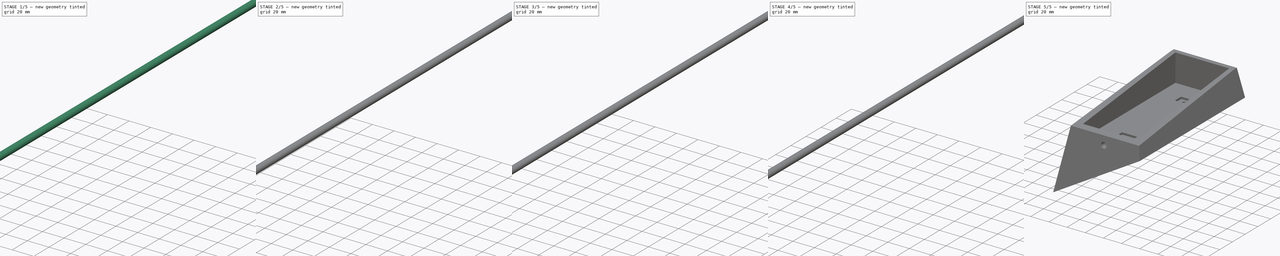
[diagram: build sequence overview — one tinted view per stage of 5, left to right]
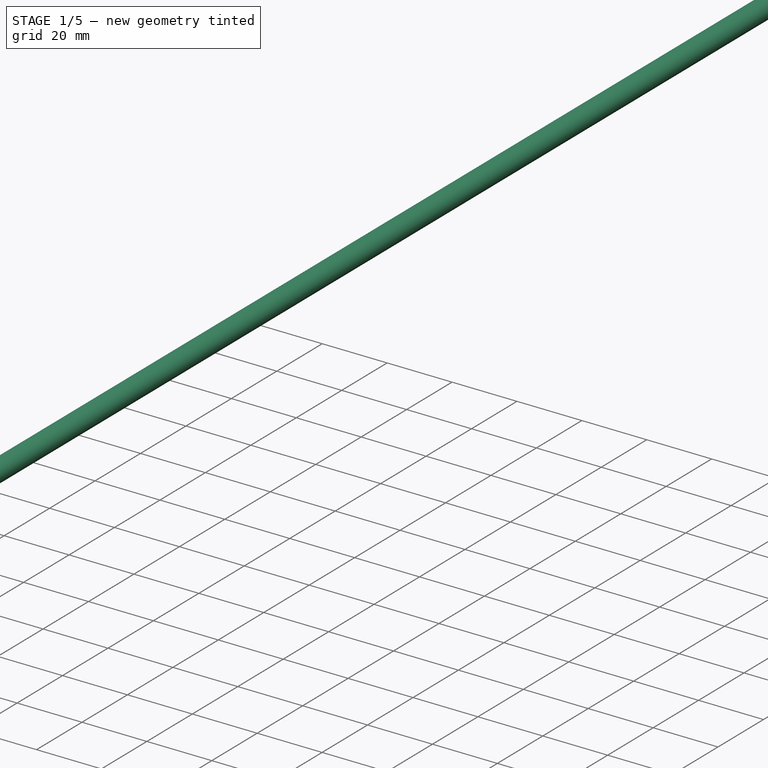
[diagram: stage 1 of 5 — iso view after this stage's code; geometry added in this stage tinted green]
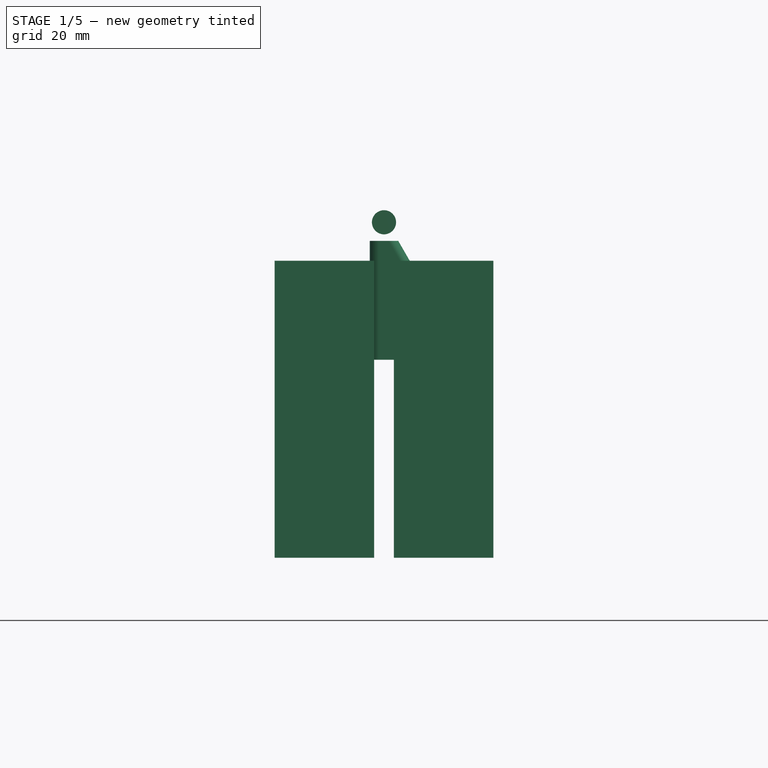
[diagram: stage 1 of 5 — front view after this stage's code; geometry added in this stage tinted green]
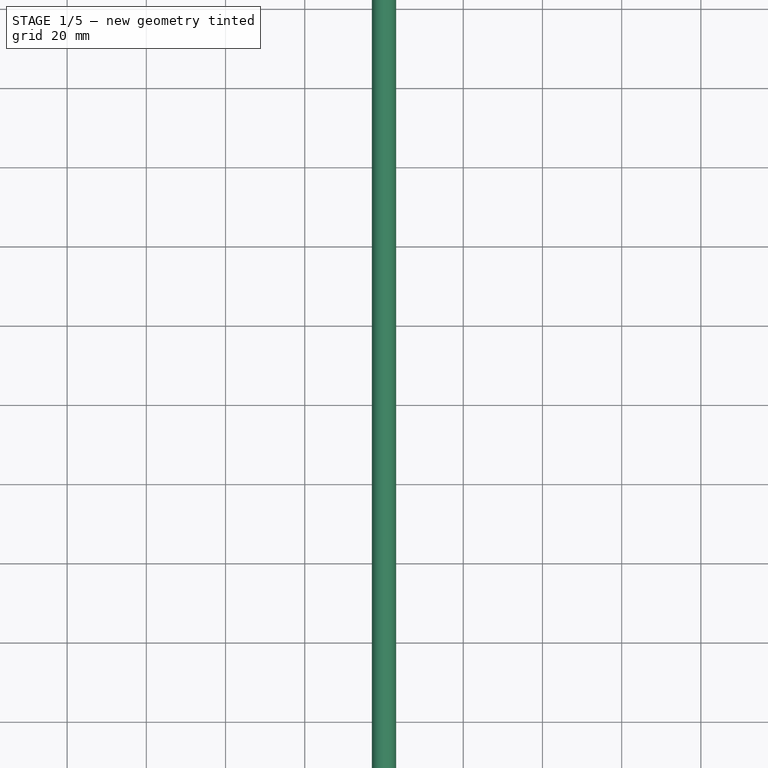
[diagram: stage 1 of 5 — top view after this stage's code; geometry added in this stage tinted green]
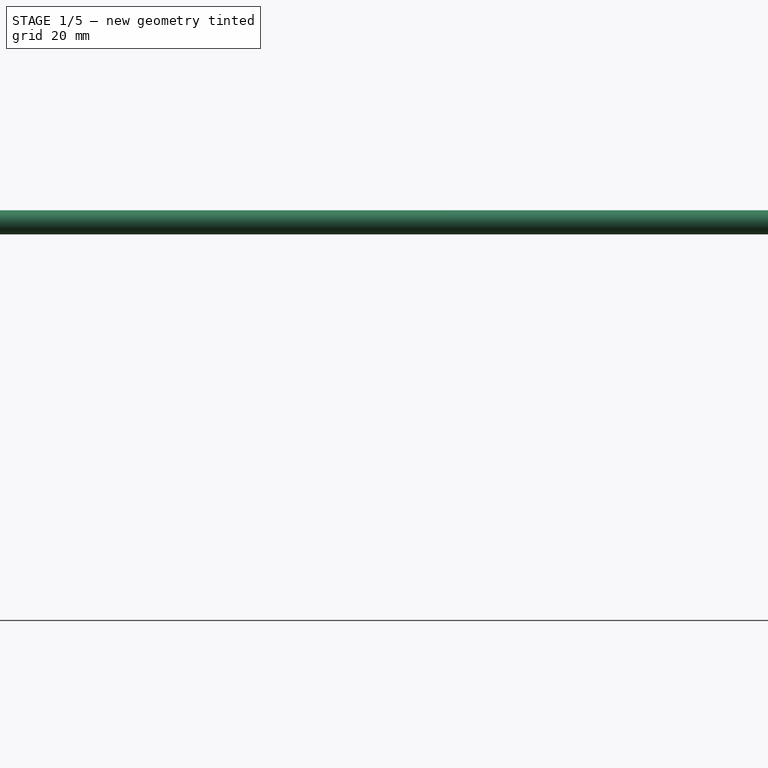
[diagram: stage 1 of 5 — right view after this stage's code; geometry added in this stage tinted green]
FCSTD DOCUMENT  (FreeCAD 0.20R29410 (Git))
Label: eufy_doorbell_cover
License: All rights reserved
LicenseURL: http://en.wikipedia.org/wiki/All_rights_reserved
objects: Sketcher::SketchObject×10, Part::Cut×9, Part::Extrusion×8, Part::Mirroring×3, Spreadsheet::Sheet×1, Part::Fuse×1, Part::Loft×1
note: 32 computed .brp shape members not serialized (recipe doc carries the construction recipe); baked Part::Feature solids carry a one-line shape summary decoded from their .brp

FEATURE [Sketcher::SketchObject] Sketch006  label="ScrewSlotEntry"
  FullyConstrained = true
  expr: Constraints[11] = <<Variables>>.OriginalScrewHoleDiameter
  expr: Constraints[12] = <<Variables>>.OriginalScrewHoleWidth - <<Variables>>.OriginalScrewHoleDiameter
  expr: Constraints[16] = <<Variables>>.MountHoleSeparation
  sketch-geometry (8):
    g0: ArcOfCircle CenterX=-1.2 CenterY=46.35 CenterZ=0 NormalX=0 NormalY=0 NormalZ=1 AngleXU=0 Radius=2.4 StartAngle=1.5708 EndAngle=4.71239
    g1: ArcOfCircle CenterX=1.2 CenterY=46.35 CenterZ=0 NormalX=0 NormalY=0 NormalZ=1 AngleXU=0 Radius=2.4 StartAngle=4.71239 EndAngle=7.85398
    g2: LineSegment StartX=-1.2 StartY=43.95 StartZ=0 EndX=1.2 EndY=43.95 EndZ=0
    g3: LineSegment StartX=1.2 StartY=48.75 StartZ=0 EndX=-1.2 EndY=48.75 EndZ=0
    g4: ArcOfCircle CenterX=-1.2 CenterY=-46.35 CenterZ=0 NormalX=0 NormalY=0 NormalZ=1 AngleXU=0 Radius=2.4 StartAngle=1.5708 EndAngle=4.71239
    g5: ArcOfCircle CenterX=1.2 CenterY=-46.35 CenterZ=0 NormalX=0 NormalY=0 NormalZ=1 AngleXU=0 Radius=2.4 StartAngle=4.71239 EndAngle=7.85398
    g6: LineSegment StartX=-1.2 StartY=-48.75 StartZ=0 EndX=1.2 EndY=-48.75 EndZ=0
    g7: LineSegment StartX=1.2 StartY=-43.95 StartZ=0 EndX=-1.2 EndY=-43.95 EndZ=0
  constraints (17):
    c: Tangent(g0,g2) = -1.5708
    c: Tangent(g2,g1) = -1.5708
    c: Tangent(g1,g3) = -1.5708
    c: Tangent(g3,g0) = -1.5708
    c: Equal(g0,g1)
    c: Tangent(g4,g6) = -1.5708
    c: Tangent(g6,g5) = -1.5708
    c: Tangent(g5,g7) = -1.5708
    c: Tangent(g7,g4) = -1.5708
    c: Equal(g4,g5)
    c: Equal(g4,g0)
    c: DistanceY(g4,g4) = 4.8
    c: DistanceX(g3,g3) = 2.4
    c: Symmetric(g0,g1,g-2)
    c: Symmetric(g4,g5,g-2)
    c: Symmetric(g5,g1,g-1)
    c: DistanceY(g5,g1) = 92.7
FEATURE [Sketcher::SketchObject] Sketch007  label="ScrewSlotBase"
  FullyConstrained = true
  Placement = pos=(0,0,-30) rot=(0,0,1;0rad)
  expr: Constraints[5] = <<Variables>>.ScrewHoleWidthAt30 - <<Variables>>.OriginalScrewHoleDiameter
  expr: Constraints[6] = <<Variables>>.MountHoleSeparation / 2
  expr: Constraints[7] = (<<Variables>>.OriginalScrewHoleWidth - <<Variables>>.OriginalScrewHoleDiameter) / 2
  expr: Constraints[8] = <<Variables>>.OriginalScrewHoleDiameter
  sketch-geometry (4):
    g0: ArcOfCircle CenterX=-1.2 CenterY=46.35 CenterZ=0 NormalX=0 NormalY=0 NormalZ=1 AngleXU=0 Radius=2.4 StartAngle=1.5708 EndAngle=4.71239
    g1: ArcOfCircle CenterX=18.5205 CenterY=46.35 CenterZ=0 NormalX=0 NormalY=0 NormalZ=1 AngleXU=0 Radius=2.4 StartAngle=4.71239 EndAngle=7.85398
    g2: LineSegment StartX=-1.2 StartY=43.95 StartZ=0 EndX=18.5205 EndY=43.95 EndZ=0
    g3: LineSegment StartX=18.5205 StartY=48.75 StartZ=0 EndX=-1.2 EndY=48.75 EndZ=0
  constraints (10):
    c: Tangent(g0,g2) = -1.5708
    c: Tangent(g2,g1) = -1.5708
    c: Tangent(g1,g3) = -1.5708
    c: Tangent(g3,g0) = -1.5708
    c: Equal(g0,g1)
    c: DistanceX(g3,g3) = 19.7205
    c: DistanceY(g-1,g0) = 46.35
    c: DistanceX(g0,g-1) = 1.2
    c: DistanceY(g1,g1) = 4.8
    c: Horizontal(g3)
FEATURE [Part::Loft] Loft  label="ScrewSlotUpper"
  Closed = false
  MaxDegree = 5
  Ruled = false
  Sections = -> [Sketch006,Sketch007]
  Solid = true
FEATURE [Sketcher::SketchObject] Sketch008
  FullyConstrained = true
  expr: Constraints[100] = <<Variables>>.MountHoleSeparation / 2
  expr: Constraints[101] = <<Variables>>.StrengthCutoutThickness
  expr: Constraints[102] = <<Variables>>.StrengthCutoutThickness
  expr: Constraints[103] = <<Variables>>.StrengthCutoutGap
  expr: Constraints[73] = <<Variables>>.EufyWidth + <<Variables>>.FaceGap * 2
  expr: Constraints[74] = <<Variables>>.EufyHeight / 2 + <<Variables>>.FaceGap
  expr: Constraints[85] = <<Variables>>.StrengthCutoutGap
  expr: Constraints[86] = <<Variables>>.StrengthCutoutGap
  expr: Constraints[95] = <<Variables>>.MountHoleHeight
  expr: Constraints[96] = <<Variables>>.MountHoleWidth
  sketch-geometry (37):
    g0: LineSegment StartX=-27.6 StartY=70.5 StartZ=0 EndX=-2.5 EndY=70.5 EndZ=0
    g1: LineSegment StartX=-2.5 StartY=70.5 StartZ=0 EndX=-2.5 EndY=54.5 EndZ=0
    g2: LineSegment StartX=-2.5 StartY=54.5 StartZ=0 EndX=-27.6 EndY=54.5 EndZ=0
    g3: LineSegment StartX=-27.6 StartY=54.5 StartZ=0 EndX=-27.6 EndY=70.5 EndZ=0
    g4: LineSegment StartX=2.5 StartY=70.5 StartZ=0 EndX=27.6 EndY=70.5 EndZ=0
    g5: LineSegment StartX=27.6 StartY=70.5 StartZ=0 EndX=27.6 EndY=54.5 EndZ=0
    g6: LineSegment StartX=27.6 StartY=54.5 StartZ=0 EndX=2.5 EndY=54.5 EndZ=0
    g7: LineSegment StartX=2.5 StartY=54.5 StartZ=0 EndX=2.5 EndY=70.5 EndZ=0
    g8: LineSegment StartX=-27.6 StartY=39.5 StartZ=0 EndX=-2.5 EndY=39.5 EndZ=0
    g9: LineSegment StartX=-2.5 StartY=39.5 StartZ=0 EndX=-2.5 EndY=23.5 EndZ=0
    g10: LineSegment StartX=-2.5 StartY=23.5 StartZ=0 EndX=-27.6 EndY=23.5 EndZ=0
    g11: LineSegment StartX=-27.6 StartY=23.5 StartZ=0 EndX=-27.6 EndY=39.5 EndZ=0
    g12: LineSegment StartX=2.5 StartY=39.5 StartZ=0 EndX=27.6 EndY=39.5 EndZ=0
    g13: LineSegment StartX=27.6 StartY=39.5 StartZ=0 EndX=27.6 EndY=23.5 EndZ=0
    g14: LineSegment StartX=27.6 StartY=23.5 StartZ=0 EndX=2.5 EndY=23.5 EndZ=0
    g15: LineSegment StartX=2.5 StartY=23.5 StartZ=0 EndX=2.5 EndY=39.5 EndZ=0
    g16: LineSegment StartX=2.5 StartY=18.5 StartZ=0 EndX=27.6 EndY=18.5 EndZ=0
    g17: LineSegment StartX=27.6 StartY=18.5 StartZ=0 EndX=27.6 EndY=2.5 EndZ=0
    g18: LineSegment StartX=27.6 StartY=2.5 StartZ=0 EndX=2.5 EndY=2.5 EndZ=0
    g19: LineSegment StartX=2.5 StartY=2.5 StartZ=0 EndX=2.5 EndY=18.5 EndZ=0
    g20: LineSegment StartX=-27.6 StartY=18.5 StartZ=0 EndX=-2.5 EndY=18.5 EndZ=0
    g21: LineSegment StartX=-2.5 StartY=18.5 StartZ=0 EndX=-2.5 EndY=2.5 EndZ=0
    g22: LineSegment StartX=-2.5 StartY=2.5 StartZ=0 EndX=-27.6 EndY=2.5 EndZ=0
    g23: LineSegment StartX=-27.6 StartY=2.5 StartZ=0 EndX=-27.6 EndY=18.5 EndZ=0
    g24: LineSegment StartX=-2.5 StartY=54.5 StartZ=0 EndX=-2.5 EndY=39.5 EndZ=0
    g25: LineSegment StartX=-29.6 StartY=0 StartZ=0 EndX=29.6 EndY=0 EndZ=0
    g26: LineSegment StartX=29.6 StartY=0 StartZ=0 EndX=29.6 EndY=72.5 EndZ=0
    g27: LineSegment StartX=29.6 StartY=72.5 StartZ=0 EndX=-29.6 EndY=72.5 EndZ=0
    g28: LineSegment StartX=-29.6 StartY=72.5 StartZ=0 EndX=-29.6 EndY=0 EndZ=0
    g29: LineSegment StartX=-2.5 StartY=23.5 StartZ=0 EndX=-2.5 EndY=21 EndZ=0
    g30: LineSegment StartX=-2.5 StartY=21 StartZ=0 EndX=-2.5 EndY=18.5 EndZ=0
    g31: LineSegment StartX=-2.5 StartY=2.5 StartZ=0 EndX=-2.5 EndY=0 EndZ=0
    g32: LineSegment StartX=-8.3 StartY=51.2 StartZ=0 EndX=8.3 EndY=51.2 EndZ=0
    g33: LineSegment StartX=8.3 StartY=51.2 StartZ=0 EndX=8.3 EndY=41.5 EndZ=0
    g34: LineSegment StartX=8.3 StartY=41.5 StartZ=0 EndX=-8.3 EndY=41.5 EndZ=0
    g35: LineSegment StartX=-8.3 StartY=41.5 StartZ=0 EndX=-8.3 EndY=51.2 EndZ=0
    g36: LineSegment StartX=-8.3 StartY=46.35 StartZ=0 EndX=8.3 EndY=46.35 EndZ=0
  constraints (104):
    c: Coincident(g0,g1)
    c: Coincident(g1,g2)
    c: Coincident(g2,g3)
    c: Coincident(g3,g0)
    c: Horizontal(g0)
    c: Horizontal(g2)
    c: Vertical(g1)
    c: Vertical(g3)
    c: Coincident(g4,g5)
    c: Coincident(g5,g6)
    c: Coincident(g6,g7)
    c: Coincident(g7,g4)
    c: Horizontal(g4)
    c: Horizontal(g6)
    c: Vertical(g5)
    c: Vertical(g7)
    c: Coincident(g8,g9)
    c: Coincident(g9,g10)
    c: Coincident(g10,g11)
    c: Coincident(g11,g8)
    c: Horizontal(g8)
    c: Horizontal(g10)
    c: Vertical(g9)
    c: Vertical(g11)
    c: Coincident(g12,g13)
    c: Coincident(g13,g14)
    c: Coincident(g14,g15)
    c: Coincident(g15,g12)
    c: Horizontal(g12)
    c: Horizontal(g14)
    c: Vertical(g13)
    c: Vertical(g15)
    c: Coincident(g16,g17)
    c: Coincident(g17,g18)
    c: Coincident(g18,g19)
    c: Coincident(g19,g16)
    c: Horizontal(g16)
    c: Horizontal(g18)
    c: Vertical(g17)
    c: Vertical(g19)
    c: Coincident(g20,g21)
    c: Coincident(g21,g22)
    c: Coincident(g22,g23)
    c: Coincident(g23,g20)
    c: Horizontal(g20)
    c: Horizontal(g22)
    c: Vertical(g21)
    c: Vertical(g23)
    c: Coincident(g24,g1)
    c: Coincident(g24,g8)
    c: Vertical(g24)
    c: Equal(g0,g4)
    c: Equal(g4,g12)
    c: Equal(g12,g8)
    c: Equal(g8,g20)
    c: Equal(g20,g16)
    c: Equal(g21,g9)
    c: Equal(g9,g1)
    c: Equal(g7,g15)
    c: Equal(g15,g19)
    c: Equal(g19,g21)
    c: Symmetric(g8,g12,g-2)
    c: Symmetric(g0,g4,g-2)
    c: Symmetric(g20,g16,g-2)
    c: Coincident(g25,g26)
    c: Coincident(g26,g27)
    c: Coincident(g27,g28)
    c: Coincident(g28,g25)
    c: Horizontal(g25)
    c: Vertical(g26)
    c: Vertical(g28)
    c: PointOnObject(g25,g-1)
    c: Symmetric(g27,g26,g-2)
    c: DistanceX(g27,g27) = 59.2
    c: DistanceY(g26,g26) = 72.5
    c: Coincident(g29,g9)
    c: Coincident(g30,g29)
    c: Coincident(g30,g20)
    c: Vertical(g30)
    c: Vertical(g29)
    c: Coincident(g31,g21)
    c: PointOnObject(g31,g25)
    c: Vertical(g31)
    c: Equal(g31,g30)
    c: Equal(g30,g29)
    c: DistanceY(g0,g27) = 2
    c: DistanceX(g25,g8) = 2
    c: Coincident(g32,g33)
    c: Coincident(g33,g34)
    c: Coincident(g34,g35)
    c: Coincident(g35,g32)
    c: Horizontal(g34)
    c: Vertical(g33)
    c: Vertical(g35)
    c: Symmetric(g32,g32,g-2)
    c: DistanceY(g33,g33) = 9.7
    c: DistanceX(g34,g34) = 16.6
    c: PointOnObject(g36,g35)
    c: PointOnObject(g36,g33)
    c: Symmetric(g34,g32,g36)
    c: DistanceY(g-1,g36) = 46.35
    c: DistanceY(g20,g10) = 5
    c: DistanceX(g9,g14) = 5
    c: DistanceY(g8,g34) = 2
FEATURE [Part::Extrusion] Extrude007
  Base = -> Sketch008
  Dir = (0,0,1)
  DirMode = 2
  FaceMakerClass = Part::FaceMakerBullseye
  LengthFwd = -5
  LengthRev = 80
  Solid = true
  Symmetric = false
  expr: LengthFwd = -<<Variables>>.StrengthCutoutBackOffset
FEATURE [Part::Mirroring] Part__Mirroring002  label="Extrude007 (Mirror #3)"
  Base = (0,0,0)
  Normal = (0,1,0)
  Source = -> Extrude007
FEATURE [Sketcher::SketchObject] Sketch009
  FullyConstrained = true
  Placement = pos=(0,0,0) rot=(1,0,0;1.5708rad)
  expr: Constraints[1] = <<Variables>>.ScrewHeadDiam
  expr: Constraints[2] = <<Variables>>.ReleaseHoleDepth
  sketch-geometry (1):
    g0: Circle CenterX=0 CenterY=4.7 CenterZ=0 NormalX=0 NormalY=0 NormalZ=1 AngleXU=0 Radius=3.05
  constraints (3):
    c: PointOnObject(g0,g-2)
    c: Diameter(g0) = 6.1
    c: DistanceY(g-1,g0) = 4.7
FEATURE [Part::Extrusion] Extrude008
  Base = -> Sketch009
  Dir = (0,-1,2e-16)
  DirMode = 2
  FaceMakerClass = Part::FaceMakerBullseye
  LengthFwd = 76.7
  LengthRev = -1000
  Solid = true
  Symmetric = false
  expr: LengthFwd = <<Variables>>.EufyHeight / 2 + <<Variables>>.FaceGap + <<Variables>>.ThreadInsertLength
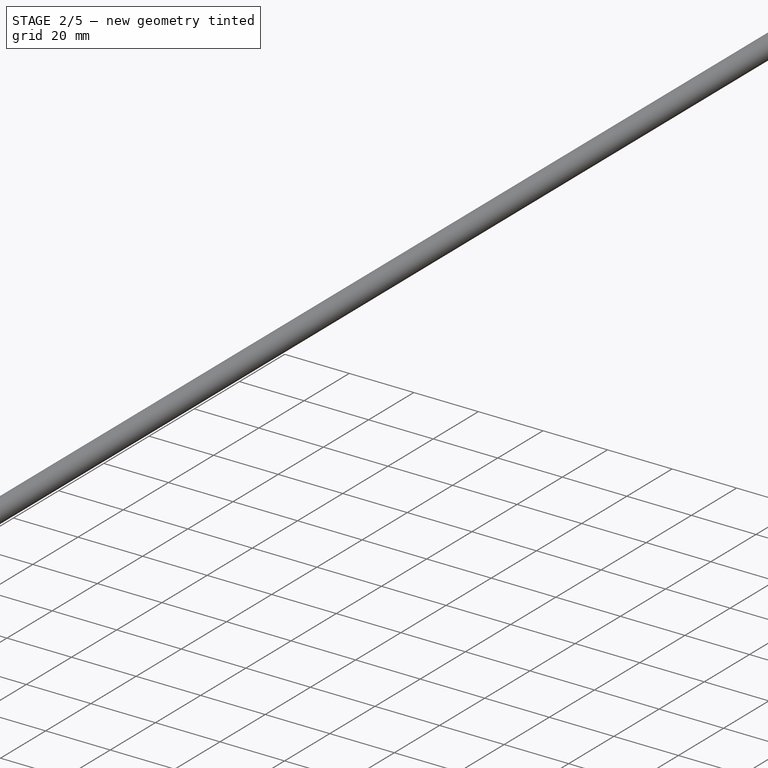
[diagram: stage 2 of 5 — iso view after this stage's code; geometry added in this stage tinted green]
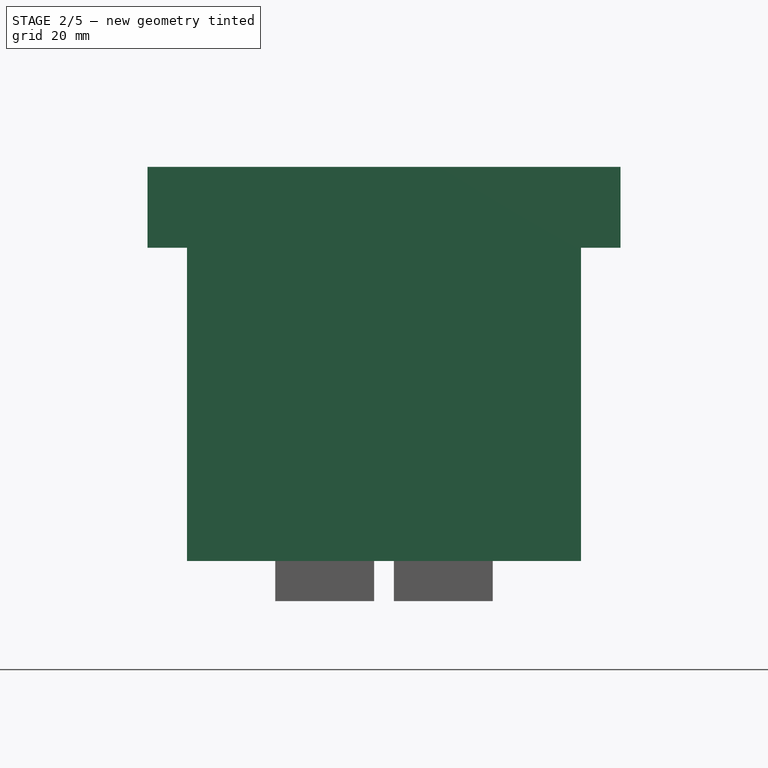
[diagram: stage 2 of 5 — front view after this stage's code; geometry added in this stage tinted green]
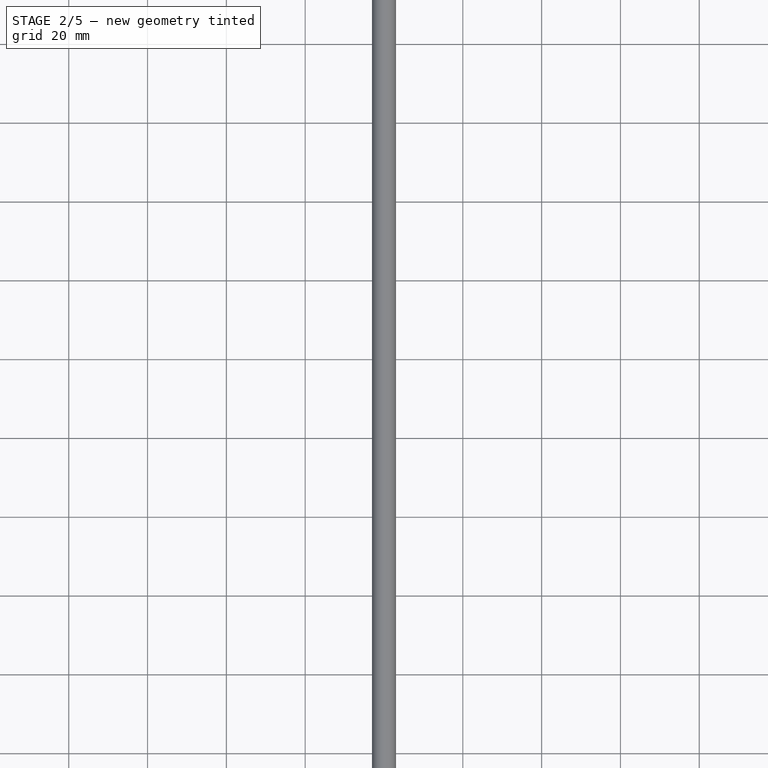
[diagram: stage 2 of 5 — top view after this stage's code; geometry added in this stage tinted green]
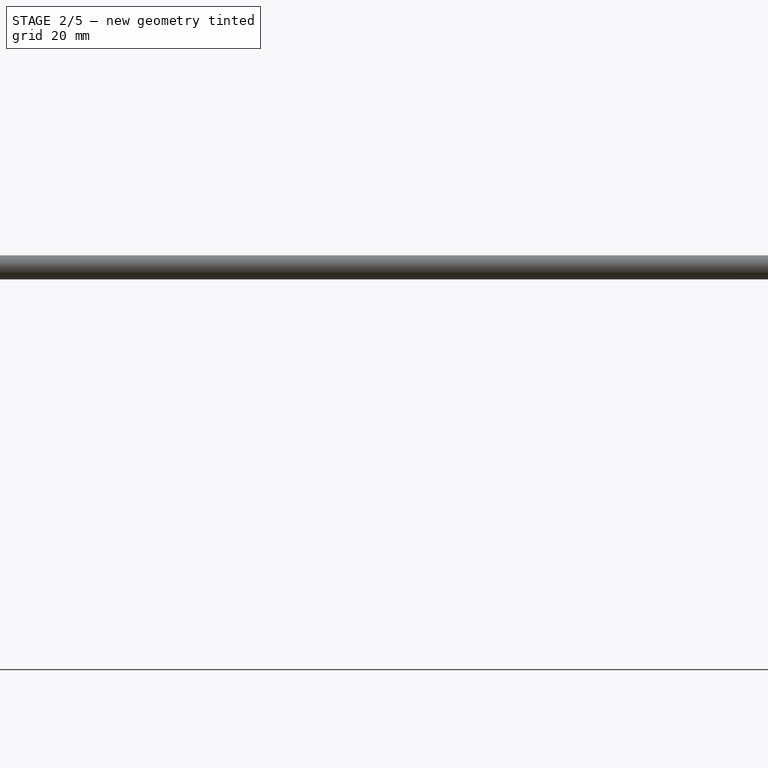
[diagram: stage 2 of 5 — right view after this stage's code; geometry added in this stage tinted green]
FEATURE [Sketcher::SketchObject] Sketch001
  FullyConstrained = true
  expr: Constraints[100] = <<Variables>>.EufyHeight
  expr: Constraints[101] = <<Variables>>.EufyWidth
  expr: Constraints[63] = <<Variables>>.MountHoleSeparation
  expr: Constraints[65] = <<Variables>>.MountHoleWidth
  expr: Constraints[66] = <<Variables>>.MountHoleHeight
  sketch-geometry (38):
    g0: LineSegment StartX=-8.3 StartY=46.35 StartZ=0 EndX=0 EndY=46.35 EndZ=0
    g1: LineSegment StartX=0 StartY=46.35 StartZ=0 EndX=0 EndY=51.2 EndZ=0
    g2: LineSegment StartX=0 StartY=51.2 StartZ=0 EndX=-8.3 EndY=51.2 EndZ=0
    g3: LineSegment StartX=-8.3 StartY=51.2 StartZ=0 EndX=-8.3 EndY=46.35 EndZ=0
    g4: LineSegment StartX=0 StartY=-51.2 StartZ=0 EndX=8.3 EndY=-51.2 EndZ=0
    g5: LineSegment StartX=8.3 StartY=-51.2 StartZ=0 EndX=8.3 EndY=-46.35 EndZ=0
    g6: LineSegment StartX=8.3 StartY=-46.35 StartZ=0 EndX=0 EndY=-46.35 EndZ=0
    g7: LineSegment StartX=0 StartY=-46.35 StartZ=0 EndX=0 EndY=-51.2 EndZ=0
    g8: LineSegment StartX=0 StartY=-46.35 StartZ=0 EndX=-8.3 EndY=-46.35 EndZ=0
    g9: LineSegment StartX=-8.3 StartY=-46.35 StartZ=0 EndX=-8.3 EndY=-41.5 EndZ=0
    g10: LineSegment StartX=-8.3 StartY=-41.5 StartZ=0 EndX=0 EndY=-41.5 EndZ=0
    g11: LineSegment StartX=0 StartY=-41.5 StartZ=0 EndX=0 EndY=-46.35 EndZ=0
    g12: LineSegment StartX=0 StartY=46.35 StartZ=0 EndX=8.3 EndY=46.35 EndZ=0
    g13: LineSegment StartX=8.3 StartY=46.35 StartZ=0 EndX=8.3 EndY=41.5 EndZ=0
    g14: LineSegment StartX=8.3 StartY=41.5 StartZ=0 EndX=0 EndY=41.5 EndZ=0
    g15: LineSegment StartX=0 StartY=41.5 StartZ=0 EndX=0 EndY=46.35 EndZ=0
    g16: LineSegment StartX=0 StartY=51.2 StartZ=0 EndX=8.3 EndY=51.2 EndZ=0
    g17: LineSegment StartX=8.3 StartY=51.2 StartZ=0 EndX=8.3 EndY=46.35 EndZ=0
    g18: LineSegment StartX=-8.3 StartY=46.35 StartZ=0 EndX=-8.3 EndY=41.5 EndZ=0
    g19: LineSegment StartX=0 StartY=41.5 StartZ=0 EndX=-8.3 EndY=41.5 EndZ=0
    g20: LineSegment StartX=0 StartY=-51.2 StartZ=0 EndX=-8.3 EndY=-51.2 EndZ=0
    g21: LineSegment StartX=-8.3 StartY=-51.2 StartZ=0 EndX=-8.3 EndY=-46.35 EndZ=0
    g22: LineSegment StartX=0 StartY=-41.5 StartZ=0 EndX=8.3 EndY=-41.5 EndZ=0
    g23: LineSegment StartX=8.3 StartY=-41.5 StartZ=0 EndX=8.3 EndY=-46.35 EndZ=0
    g24: LineSegment StartX=0 StartY=51.2 StartZ=0 EndX=0 EndY=0 EndZ=0
    g25: LineSegment StartX=0 StartY=0 StartZ=0 EndX=0 EndY=-51.2 EndZ=0
    g26: LineSegment StartX=0 StartY=0 StartZ=0 EndX=27.1 EndY=0 EndZ=0
    g27: LineSegment StartX=27.1 StartY=0 StartZ=0 EndX=27.1 EndY=70 EndZ=0
    g28: LineSegment StartX=27.1 StartY=70 StartZ=0 EndX=0 EndY=70 EndZ=0
    g29: LineSegment StartX=0 StartY=70 StartZ=0 EndX=0 EndY=0 EndZ=0
    g30: LineSegment StartX=0 StartY=0 StartZ=0 EndX=-27.1 EndY=0 EndZ=0
    g31: LineSegment StartX=-27.1 StartY=0 StartZ=0 EndX=-27.1 EndY=-70 EndZ=0
    g32: LineSegment StartX=-27.1 StartY=-70 StartZ=0 EndX=0 EndY=-70 EndZ=0
    g33: LineSegment StartX=0 StartY=-70 StartZ=0 EndX=0 EndY=0 EndZ=0
    g34: LineSegment StartX=-27.1 StartY=0 StartZ=0 EndX=-27.1 EndY=70 EndZ=0
    g35: LineSegment StartX=-27.1 StartY=70 StartZ=0 EndX=0 EndY=70 EndZ=0
    g36: LineSegment StartX=27.1 StartY=0 StartZ=0 EndX=27.1 EndY=-70 EndZ=0
    g37: LineSegment StartX=27.1 StartY=-70 StartZ=0 EndX=0 EndY=-70 EndZ=0
  constraints (102):
    c: Coincident(g0,g1)
    c: Coincident(g1,g2)
    c: Coincident(g2,g3)
    c: Coincident(g3,g0)
    c: Horizontal(g0)
    c: Horizontal(g2)
    c: Vertical(g1)
    c: Vertical(g3)
    c: Coincident(g4,g5)
    c: Coincident(g5,g6)
    c: Coincident(g6,g7)
    c: Coincident(g7,g4)
    c: Horizontal(g4)
    c: Horizontal(g6)
    c: Vertical(g5)
    c: Vertical(g7)
    c: Coincident(g8,g9)
    c: Coincident(g9,g10)
    c: Coincident(g10,g11)
    c: Coincident(g11,g8)
    c: Horizontal(g8)
    c: Horizontal(g10)
    c: Vertical(g9)
    c: Vertical(g11)
    c: Coincident(g8,g6)
    c: Coincident(g12,g13)
    c: Coincident(g13,g14)
    c: Coincident(g14,g15)
    c: Coincident(g15,g12)
    c: Horizontal(g12)
    c: Horizontal(g14)
    c: Vertical(g13)
    c: Vertical(g15)
    c: Coincident(g12,g0)
    c: Horizontal(g16)
    c: Coincident(g17,g16)
    c: Coincident(g17,g12)
    c: Coincident(g18,g0)
    c: Coincident(g19,g14)
    c: Coincident(g19,g18)
    c: Horizontal(g19)
    c: Coincident(g21,g20)
    c: Coincident(g21,g8)
    c: Coincident(g22,g10)
    c: Horizontal(g22)
    c: Coincident(g23,g22)
    c: Coincident(g23,g5)
    c: Vertical(g23)
    c: Horizontal(g20)
    c: Vertical(g18)
    c: Vertical(g17)
    c: Vertical(g21)
    c: Equal(g20,g4)
    c: Equal(g4,g2)
    c: Equal(g2,g16)
    c: Equal(g1,g15)
    c: Equal(g15,g7)
    c: Equal(g7,g11)
    c: Coincident(g24,g1)
    c: Vertical(g24)
    c: Coincident(g25,g4)
    c: Vertical(g25)
    c: Equal(g25,g24)
    c: DistanceY(g6,g0) = 92.7
    c: Coincident(g16,g2)
    c: DistanceX(g18,g13) = 16.6
    c: DistanceY(g18,g2) = 9.7
    c: Coincident(g20,g4)
    c: Coincident(g24,g-1)
    c: Coincident(g25,g24)
    c: Coincident(g26,g27)
    c: Coincident(g27,g28)
    c: Coincident(g28,g29)
    c: Coincident(g29,g26)
    c: Horizontal(g26)
    c: Horizontal(g28)
    c: Vertical(g27)
    c: Vertical(g29)
    c: Coincident(g26,g24)
    c: Coincident(g30,g31)
    c: Coincident(g31,g32)
    c: Coincident(g32,g33)
    c: Coincident(g33,g30)
    c: Horizontal(g30)
    c: Horizontal(g32)
    c: Vertical(g31)
    c: Vertical(g33)
    c: Coincident(g30,g26)
    c: Coincident(g34,g30)
    c: Vertical(g34)
    c: Coincident(g35,g34)
    c: Coincident(g35,g28)
    c: Horizontal(g35)
    c: Coincident(g36,g26)
    c: Vertical(g36)
    c: Coincident(g37,g36)
    c: Coincident(g37,g32)
    c: Equal(g26,g30)
    c: Horizontal(g37)
    c: Equal(g33,g29)
    c: DistanceY(g31,g34) = 140
    c: DistanceX(g34,g27) = 54.2
FEATURE [Sketcher::SketchObject] Sketch002
  FullyConstrained = true
  Placement = pos=(0,0,0) rot=(1,0,0;1.5708rad)
  expr: Constraints[11] = <<Variables>>.BezelAngle
  expr: Constraints[12] = <<Variables>>.BezelAngle
  expr: Constraints[13] = <<Variables>>.Angle
  expr: Constraints[17] = <<Variables>>.EufyDepth
  expr: Constraints[19] = <<Variables>>.EufyWidth + 2 * (<<Variables>>.FaceGap + <<Variables>>.FaceWallThickness)
  sketch-geometry (7):
    g0: LineSegment StartX=0 StartY=0 StartZ=0 EndX=-34.6 EndY=0 EndZ=0
    g1: LineSegment StartX=-34.6 StartY=0 StartZ=0 EndX=-34.6 EndY=30.2 EndZ=0
    g2: LineSegment StartX=-34.6 StartY=30.2 StartZ=0 EndX=-39.9251 EndY=0 EndZ=0
    g3: LineSegment StartX=-39.9251 StartY=0 StartZ=0 EndX=48.9754 EndY=-51.3267 EndZ=0
    g4: LineSegment StartX=48.9754 StartY=-51.3267 StartZ=0 EndX=34.6 EndY=30.2 EndZ=0
    g5: LineSegment StartX=34.6 StartY=30.2 StartZ=0 EndX=34.6 EndY=0 EndZ=0
    g6: LineSegment StartX=34.6 StartY=0 StartZ=0 EndX=0 EndY=0 EndZ=0
  constraints (20):
    c: Coincident(g0,g-1)
    c: PointOnObject(g0,g-1)
    c: Coincident(g1,g0)
    c: Vertical(g1)
    c: Coincident(g2,g1)
    c: PointOnObject(g2,g-1)
    c: Coincident(g4,g3)
    c: Coincident(g5,g4)
    c: Vertical(g5)
    c: Coincident(g6,g5)
    c: Coincident(g3,g2)
    c: Angle(g2,g1) = 0.174533
    c: Angle(g5,g4) = 0.174533
    c: Angle(g3,g0) = 0.523599
    c: Horizontal(g6)
    c: Equal(g0,g6)
    c: Coincident(g6,g0)
    c: DistanceY(g5,g4) = 30.2
    c: Equal(g1,g5)
    c: DistanceX(g0,g5) = 69.2
FEATURE [Part::Extrusion] Extrude001
  Base = -> Sketch002
  Dir = (0,-1,2e-16)
  DirMode = 2
  FaceMakerClass = Part::FaceMakerBullseye
  LengthFwd = 215
  LengthRev = 0
  Solid = true
  Symmetric = true
  expr: LengthFwd = <<Variables>>.EufyHeight + 2 * <<Variables>>.FaceGap + 2 * <<Variables>>.FaceWallThickness + 60
FEATURE [Part::Extrusion] Extrude003  label="TopBottomAngleCutout"
  Base = -> Sketch003
  Dir = (1,0,0)
  DirMode = 2
  FaceMakerClass = Part::FaceMakerBullseye
  LengthFwd = 100
  LengthRev = 0
  Solid = true
  Symmetric = true
FEATURE [Part::Extrusion] Extrude004  label="MountingSquares"
  Base = -> Sketch001
  Dir = (0,0,1)
  DirMode = 2
  FaceMakerClass = Part::FaceMakerBullseye
  LengthFwd = 0
  LengthRev = 2.2
  Solid = true
  Symmetric = false
  expr: LengthRev = <<Variables>>.MountHoleDepth
FEATURE [Sketcher::SketchObject] Sketch004
  FullyConstrained = true
  Placement = pos=(0,0,0) rot=(1,0,0;1.5708rad)
  expr: Constraints[1] = <<Variables>>.ThreadInstertDiameter
  expr: Constraints[2] = <<Variables>>.ReleaseHoleDepth
  sketch-geometry (1):
    g0: Circle CenterX=0 CenterY=4.7 CenterZ=0 NormalX=0 NormalY=0 NormalZ=1 AngleXU=0 Radius=2.325
  constraints (3):
    c: PointOnObject(g0,g-2)
    c: Diameter(g0) = 4.65
    c: DistanceY(g-1,g0) = 4.7
FEATURE [Part::Extrusion] Extrude005  label="SecurityHole"
  Base = -> Sketch004
  Dir = (0,-1,2e-16)
  DirMode = 2
  FaceMakerClass = Part::FaceMakerBullseye
  LengthFwd = 150
  LengthRev = 0
  Solid = true
  Symmetric = false
FEATURE [Sketcher::SketchObject] Sketch005
  FullyConstrained = true
  Placement = pos=(0,0,0) rot=(0.57735,0.57735,0.57735;2.0944rad)
  expr: Constraints[10] = <<Variables>>.EufyHeight / 2 + <<Variables>>.FaceGap
  expr: Constraints[12] = <<Variables>>.BackingPlateDepth
  expr: Constraints[8] = <<Variables>>.EufyDepth
  expr: Constraints[9] = <<Variables>>.EufyHeight / 2 + <<Variables>>.FaceGap + <<Variables>>.FaceWallThickness
  sketch-geometry (4):
    g0: LineSegment StartX=-117.5 StartY=9.68 StartZ=0 EndX=-117.5 EndY=30.2 EndZ=0
    g1: LineSegment StartX=-117.5 StartY=30.2 StartZ=0 EndX=72.5 EndY=30.2 EndZ=0
    g2: LineSegment StartX=72.5 StartY=30.2 StartZ=0 EndX=-117.5 EndY=9.68 EndZ=0
    g3: LineSegment StartX=-77.5 StartY=14 StartZ=0 EndX=-77.5 EndY=30.2 EndZ=0
  constraints (13):
    c: Vertical(g0)
    c: Coincident(g0,g1)
    c: Horizontal(g1)
    c: Coincident(g1,g2)
    c: Coincident(g2,g0)
    c: PointOnObject(g3,g2)
    c: PointOnObject(g3,g1)
    c: Vertical(g3)
    c: DistanceY(g-1,g1) = 30.2
    c: DistanceX(g3,g-1) = 77.5
    c: DistanceX(g-1,g1) = 72.5
    c: DistanceX(g0,g3) = 40
    c: DistanceY(g-1,g3) = 14
FEATURE [Part::Extrusion] Extrude006  label="AngleFaceCutout"
  Base = -> Sketch005
  Dir = (1,0,0)
  DirMode = 2
  FaceMakerClass = Part::FaceMakerBullseye
  LengthFwd = 60
  LengthRev = 60
  Solid = true
  Symmetric = false
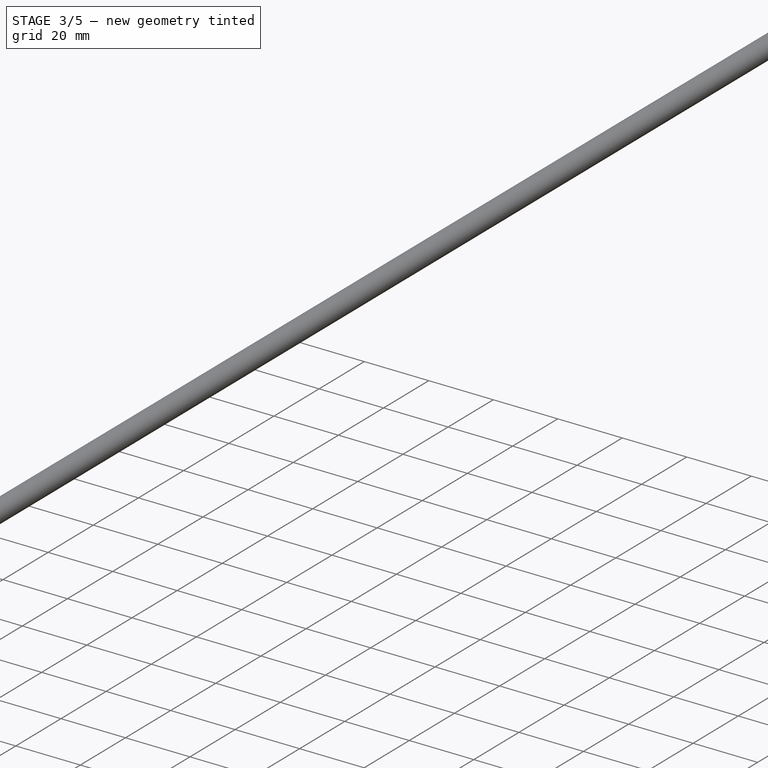
[diagram: stage 3 of 5 — iso view after this stage's code; geometry added in this stage tinted green]
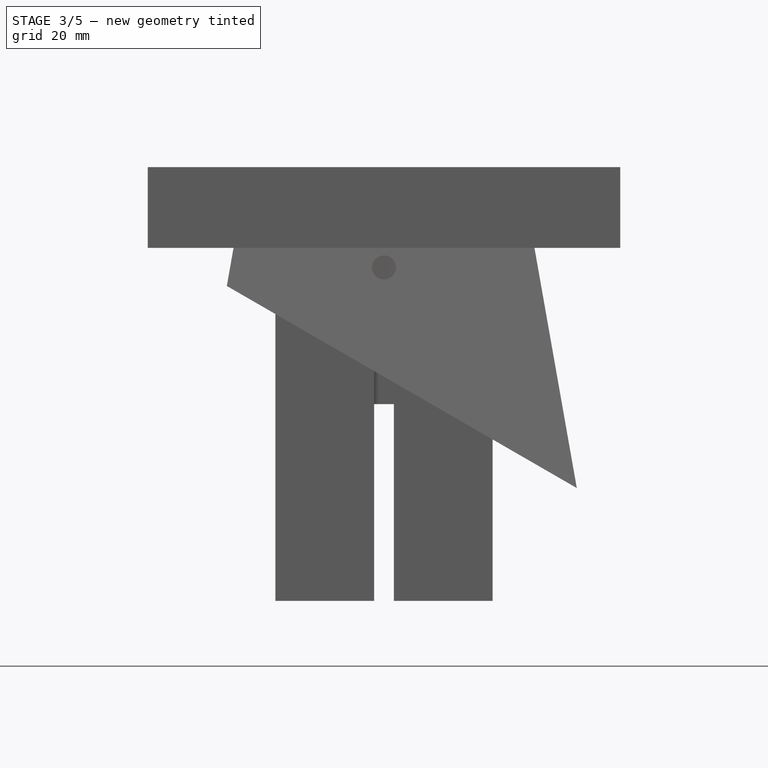
[diagram: stage 3 of 5 — front view after this stage's code; geometry added in this stage tinted green]
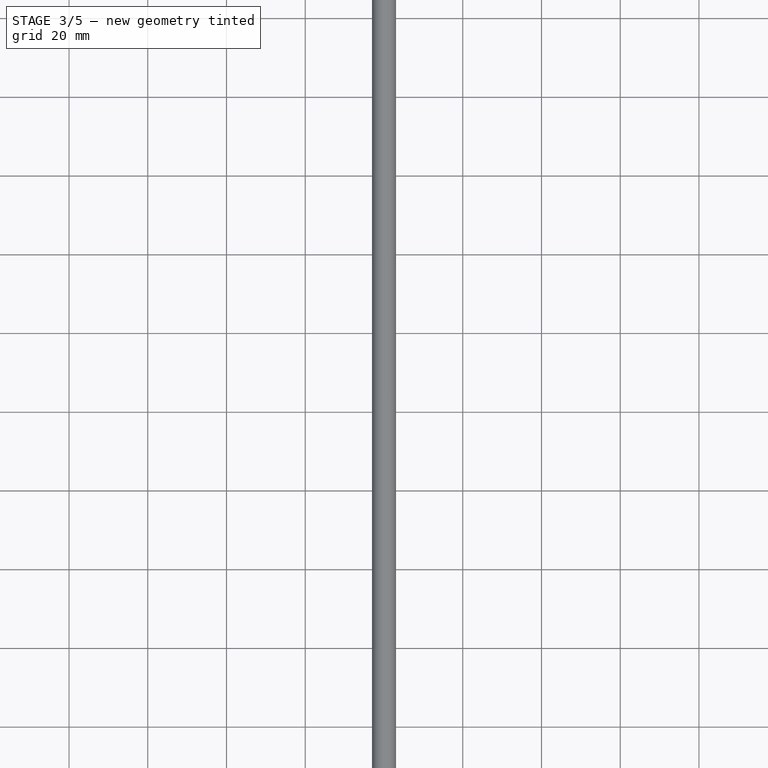
[diagram: stage 3 of 5 — top view after this stage's code; geometry added in this stage tinted green]
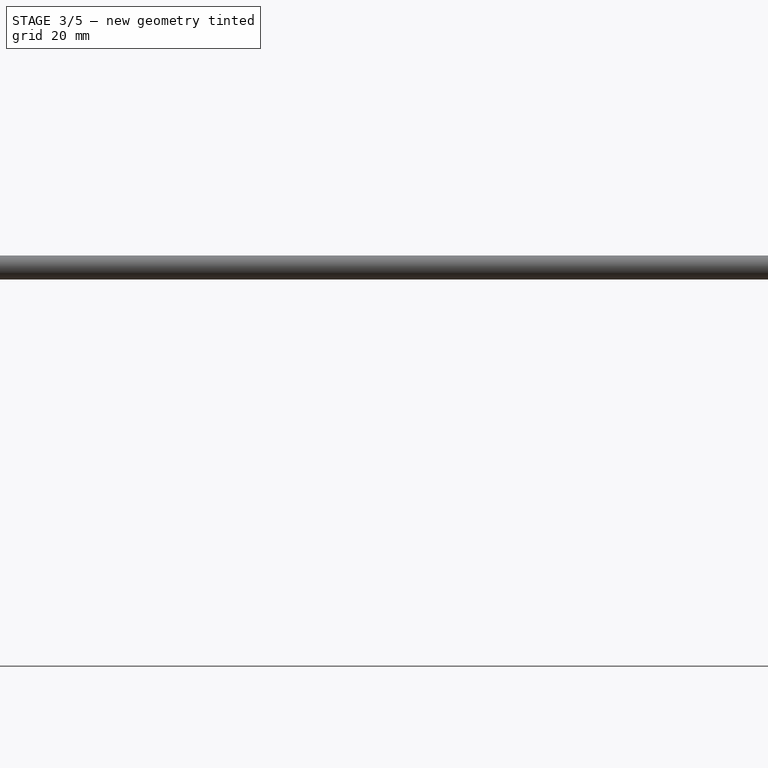
[diagram: stage 3 of 5 — right view after this stage's code; geometry added in this stage tinted green]
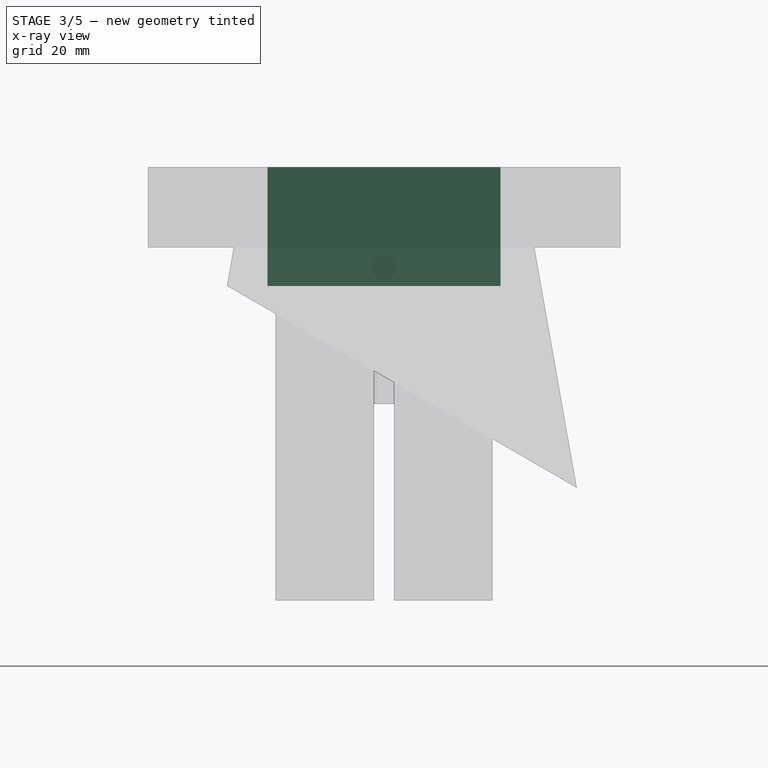
[diagram: stage 3 of 5 — x-ray composite at the front view; earlier geometry ghosted, this stage's added geometry solid]
FEATURE [Spreadsheet::Sheet] Spreadsheet  label="Variables"
  cells = A1=EufyWidth; B1(EufyWidth)=54.2; C1=The base doorbell dimensions; A2=EufyHeight; B2(EufyHeight)=140; C2=The base doorbell dimensions; A3=EufyDepth; B3(EufyDepth)=30.2; C3=The base doorbell dimensions. Includes backing plate.; A4=FaceGap; B4(FaceGap)=2.5; C4=The horizontal/vertical gap between the doorbell and the mount wall; A5=MountHoleWidth; B5(MountHoleWidth)==16.3 + 0.3; C5=The rectangular cutout that the backing plate fits into; A6=MountHoleHeight; B6(MountHoleHeight)==9.4 + 0.3; C6=The rectangular cutout that the backing plate fits into; A7=MountHoleSeparation; B7(MountHoleSeparation)==(83.09999999999999 + 102.3) / 2; A8=MountHoleDepth; B8(MountHoleDepth)=2.2; C8=How tall the protrusion is on the backing plate.; A9=FaceWallThickness; B9(FaceWallThickness)=5; C9=How thick the wall of the mount is when viewed from the front; A10=BackingPlateDepth; B10(BackingPlateDepth)=14; C10=The height of the backing plate.; A11=Angle; B11(Angle)=30; C11=The angle in degrees of the wall to the doorbell; A12=BezelAngle; B12(BezelAngle)=10; C12=The angle between the normal to the doorbell and the side walls of the mount; A13=MountHoleDiameter; B13(MountHoleDiameter)=5; A14=ReleaseHoleDepth; B14(ReleaseHoleDepth)==-8.4 - 1.8 / 2 + 14; A15=ThreadInsertDiameter; B15(ThreadInstertDiameter)==ThreadInsertOuterDiam - 0.6; A16=OriginalScrewHoleDiameter; B16(OriginalScrewHoleDiameter)=4.8; A17=OriginalScrewHoleWidth; B17(OriginalScrewHoleWidth)=7.2; A18=ScrewHoleWidthAt30; B18(ScrewHoleWidthAt30)==OriginalScrewHoleWidth + 30 * tan(Angle); A19=PowerHoleHeight; B19(PowerHoleHeight)=23; A20=PowerHoleWidth; B20(PowerHoleWidth)=24.5; A21=PowerHoleMinSeparation; B21(PowerHoleMinSeparation)=16.5; A22=StrengthCutoutGap; B22(StrengthCutoutGap)=2; A23=StrengthCutoutThickness; B23(StrengthCutoutThickness)=5; A24=StrengthCutoutBackOffset; B24(StrengthCutoutBackOffset)=5; A25=ThreadInsertLength; B25(ThreadInsertLength)==4.05 + 0.15; A26=ThreadInsertOuterDiam; B26(ThreadInsertOuterDiam)=5.25; A27=ThreadInsertInnerDiam; B27=4.55; A28=ScrewDiam; B28=2.82; A29=ScrewHeadDiam; B29(ScrewHeadDiam)==5.7 + 0.4; A30=ScrewHeadLength; B30=2.4; A31=ScrewLength; B31=8.52
FEATURE [Sketcher::SketchObject] Sketch
  FullyConstrained = true
  expr: Constraints[11] = <<Variables>>.EufyHeight + 2 * <<Variables>>.FaceGap
  expr: Constraints[12] = <<Variables>>.EufyWidth + <<Variables>>.FaceGap * 2
  expr: Constraints[13] = <<Variables>>.EufyWidth + 2 * <<Variables>>.FaceGap + 2 * <<Variables>>.FaceWallThickness
  expr: Constraints[14] = <<Variables>>.EufyHeight + 2 * <<Variables>>.FaceGap + 2 * <<Variables>>.FaceWallThickness + 60
  expr: Constraints[15] = <<Variables>>.FaceWallThickness
  expr: Constraints[16] = <<Variables>>.FaceWallThickness + 30
  sketch-geometry (10):
    g0: LineSegment StartX=29.6 StartY=72.5 StartZ=0 EndX=-29.6 EndY=72.5 EndZ=0
    g1: LineSegment StartX=-29.6 StartY=72.5 StartZ=0 EndX=-29.6 EndY=-72.5 EndZ=0
    g2: LineSegment StartX=-34.6 StartY=-107.5 StartZ=0 EndX=34.6 EndY=-107.5 EndZ=0
    g3: LineSegment StartX=34.6 StartY=-107.5 StartZ=0 EndX=34.6 EndY=107.5 EndZ=0
    g4: LineSegment StartX=34.6 StartY=107.5 StartZ=0 EndX=-34.6 EndY=107.5 EndZ=0
    g5: LineSegment StartX=-34.6 StartY=107.5 StartZ=0 EndX=-34.6 EndY=-107.5 EndZ=0
    g6: LineSegment StartX=-29.6 StartY=-72.5 StartZ=0 EndX=0 EndY=-72.5 EndZ=0
    g7: LineSegment StartX=0 StartY=-72.5 StartZ=0 EndX=29.6 EndY=-72.5 EndZ=0
    g8: LineSegment StartX=29.6 StartY=72.5 StartZ=0 EndX=29.6 EndY=0 EndZ=0
    g9: LineSegment StartX=29.6 StartY=0 StartZ=0 EndX=29.6 EndY=-72.5 EndZ=0
  constraints (30):
    c: Coincident(g0,g1)
    c: Horizontal(g0)
    c: Vertical(g1)
    c: Coincident(g2,g3)
    c: Coincident(g3,g4)
    c: Coincident(g4,g5)
    c: Coincident(g5,g2)
    c: Horizontal(g2)
    c: Horizontal(g4)
    c: Vertical(g3)
    c: Vertical(g5)
    c: DistanceY(g1,g1) = 145
    c: DistanceX(g0,g0) = 59.2
    c: DistanceX(g2,g2) = 69.2
    c: DistanceY(g5,g5) = 215
    c: DistanceX(g2,g1) = 5
    c: DistanceY(g2,g1) = 35
    c: Coincident(g6,g1)
    c: PointOnObject(g6,g-2)
    c: Horizontal(g6)
    c: Coincident(g7,g6)
    c: Horizontal(g7)
    c: Equal(g7,g6)
    c: Coincident(g8,g0)
    c: PointOnObject(g8,g-1)
    c: Vertical(g8)
    c: Coincident(g9,g8)
    c: Coincident(g9,g7)
    c: Vertical(g9)
    c: Equal(g9,g8)
FEATURE [Part::Extrusion] Extrude  label="TopSideBOrder"
  Base = -> Sketch
  Dir = (0,0,1)
  DirMode = 2
  FaceMakerClass = Part::FaceMakerBullseye
  LengthFwd = 30.2
  LengthRev = 0
  Solid = true
  Symmetric = false
  expr: LengthFwd = <<Variables>>.EufyDepth
FEATURE [Sketcher::SketchObject] Sketch003
  FullyConstrained = true
  Placement = pos=(0,0,0) rot=(0.57735,0.57735,0.57735;2.0944rad)
  expr: Constraints[34] = <<Variables>>.BezelAngle
  expr: Constraints[35] = <<Variables>>.EufyHeight / 2 + <<Variables>>.FaceGap + <<Variables>>.FaceWallThickness
  expr: Constraints[36] = <<Variables>>.EufyDepth
  sketch-geometry (14):
    g0: LineSegment StartX=-77.5 StartY=30.2 StartZ=0 EndX=-95.1327 EndY=-69.8 EndZ=0
    g1: LineSegment StartX=-95.1327 StartY=-69.8 StartZ=0 EndX=-95.1327 EndY=30.2 EndZ=0
    g2: LineSegment StartX=-95.1327 StartY=30.2 StartZ=0 EndX=-77.5 EndY=30.2 EndZ=0
    g3: LineSegment StartX=77.5 StartY=30.2 StartZ=0 EndX=95.1327 EndY=-69.8 EndZ=0
    g4: LineSegment StartX=95.1327 StartY=-69.8 StartZ=0 EndX=95.1327 EndY=30.2 EndZ=0
    g5: LineSegment StartX=77.5 StartY=30.2 StartZ=0 EndX=95.1327 EndY=30.2 EndZ=0
    g6: LineSegment StartX=95.1327 StartY=30.2 StartZ=0 EndX=145.133 EndY=30.2 EndZ=0
    g7: LineSegment StartX=145.133 StartY=30.2 StartZ=0 EndX=145.133 EndY=-69.8 EndZ=0
    g8: LineSegment StartX=145.133 StartY=-69.8 StartZ=0 EndX=95.1327 EndY=-69.8 EndZ=0
    g9: LineSegment StartX=-95.1327 StartY=30.2 StartZ=0 EndX=-145.133 EndY=30.2 EndZ=0
    g10: LineSegment StartX=-145.133 StartY=30.2 StartZ=0 EndX=-145.133 EndY=-69.8 EndZ=0
    g11: LineSegment StartX=-145.133 StartY=-69.8 StartZ=0 EndX=-95.1327 EndY=-69.8 EndZ=0
    g12: LineSegment StartX=-77.5 StartY=30.2 StartZ=0 EndX=0 EndY=30.2 EndZ=0
    g13: LineSegment StartX=0 StartY=30.2 StartZ=0 EndX=77.5 EndY=30.2 EndZ=0
  constraints (39):
    c: Coincident(g1,g0)
    c: Vertical(g1)
    c: Coincident(g2,g1)
    c: Coincident(g2,g0)
    c: Horizontal(g2)
    c: Coincident(g4,g3)
    c: Coincident(g5,g3)
    c: Coincident(g5,g4)
    c: Horizontal(g5)
    c: Coincident(g6,g4)
    c: Horizontal(g6)
    c: Coincident(g7,g6)
    c: Vertical(g7)
    c: Coincident(g8,g7)
    c: Coincident(g8,g3)
    c: Horizontal(g8)
    c: Coincident(g9,g1)
    c: Coincident(g10,g9)
    c: Coincident(g11,g10)
    c: Coincident(g11,g0)
    c: Horizontal(g11)
    c: Horizontal(g9)
    c: Equal(g6,g9)
    c: Equal(g2,g5)
    c: Vertical(g4)
    c: Vertical(g10)
    c: Equal(g1,g4)
    c: Coincident(g12,g0)
    c: PointOnObject(g12,g-2)
    c: Coincident(g13,g12)
    c: Coincident(g13,g3)
    c: Horizontal(g12)
    c: Horizontal(g13)
    c: Equal(g13,g12)
    c: Angle(g0,g1) = 0.174533
    c: DistanceX(g0,g-1) = 77.5
    c: DistanceY(g-1,g12) = 30.2
    c: DistanceX(g6,g6) = 50
    c: DistanceY(g7,g7) = 100
FEATURE [Part::Fuse] Fusion
  Base = -> Extrude
  Tool = -> Extrude001
FEATURE [Part::Cut] Cut
  Base = -> Fusion
  Tool = -> Extrude003
FEATURE [Part::Cut] Cut001
  Base = -> Cut
  Tool = -> Extrude004
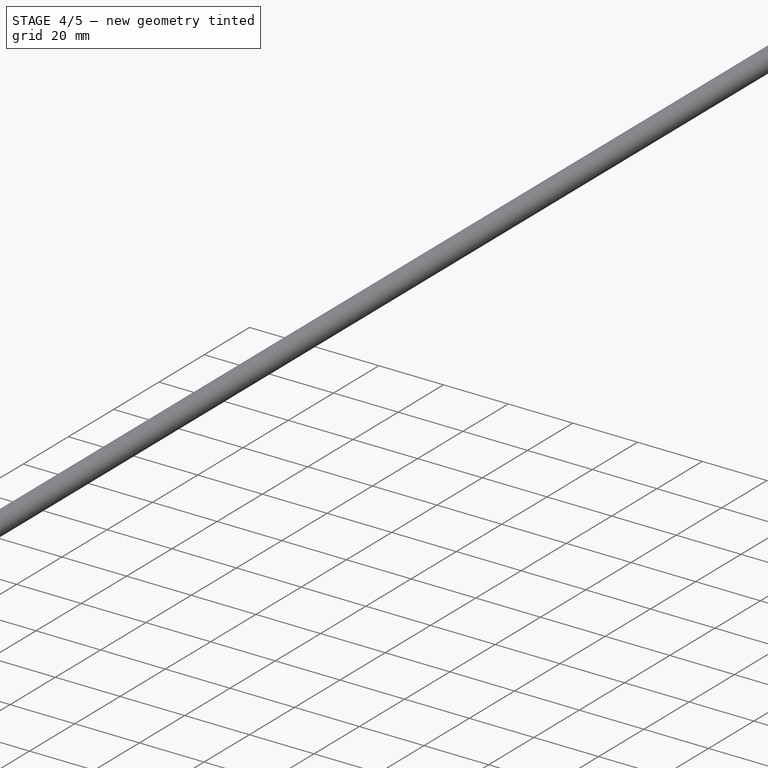
[diagram: stage 4 of 5 — iso view after this stage's code; geometry added in this stage tinted green]
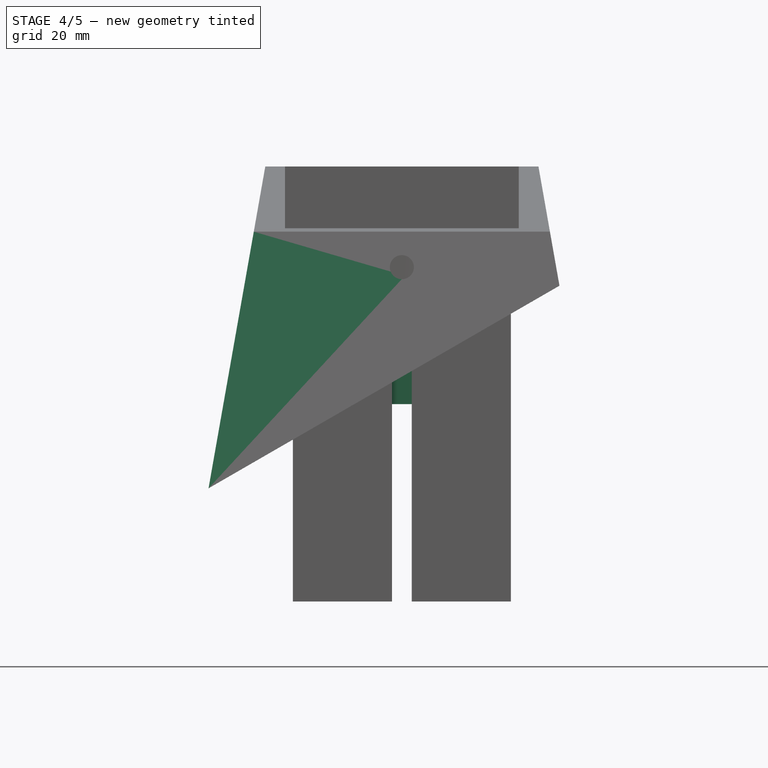
[diagram: stage 4 of 5 — front view after this stage's code; geometry added in this stage tinted green]
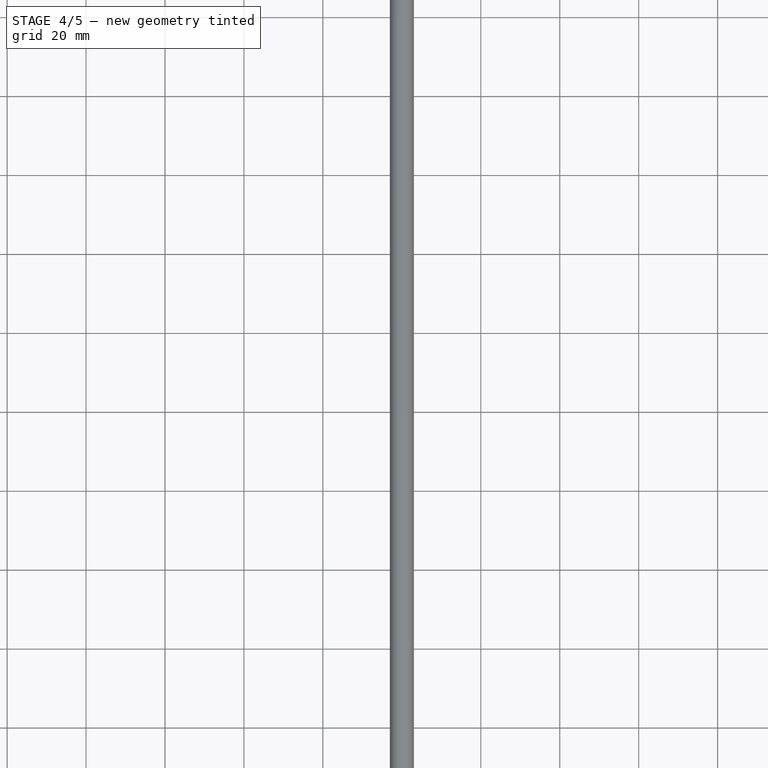
[diagram: stage 4 of 5 — top view after this stage's code; geometry added in this stage tinted green]
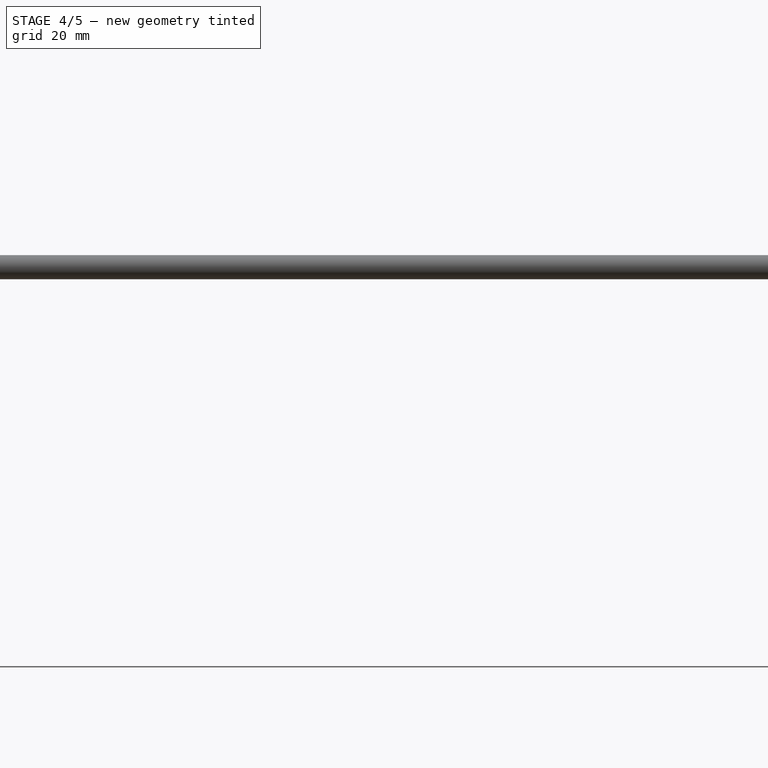
[diagram: stage 4 of 5 — right view after this stage's code; geometry added in this stage tinted green]
FEATURE [Part::Mirroring] Part__Mirroring  label="Cut001 (Mirror #1)"
  Base = (0,0,0)
  Normal = (1,0,0)
  Source = -> Cut001
FEATURE [Part::Cut] Cut002
  Base = -> Part__Mirroring
  Tool = -> Extrude005
FEATURE [Part::Cut] Cut003
  Base = -> Cut002
  Tool = -> Extrude006
FEATURE [Part::Mirroring] Part__Mirroring001  label="ScrewSlotLower"
  Base = (0,0,0)
  Normal = (0,1,0)
  Source = -> Loft
FEATURE [Part::Cut] Cut004
  Base = -> Cut003
  Tool = -> Loft
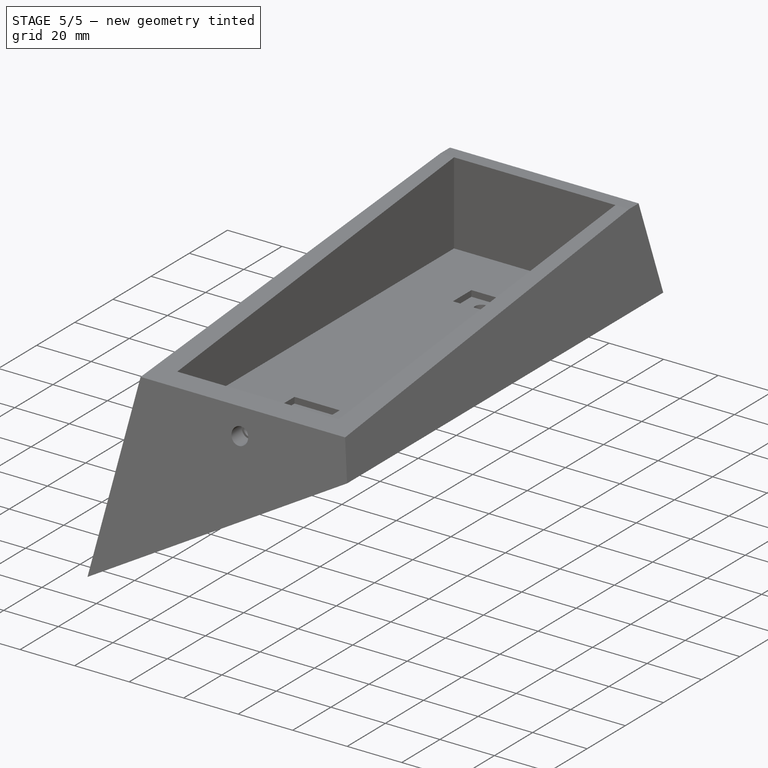
[diagram: stage 5 of 5 — iso view after this stage's code; geometry added in this stage tinted green]
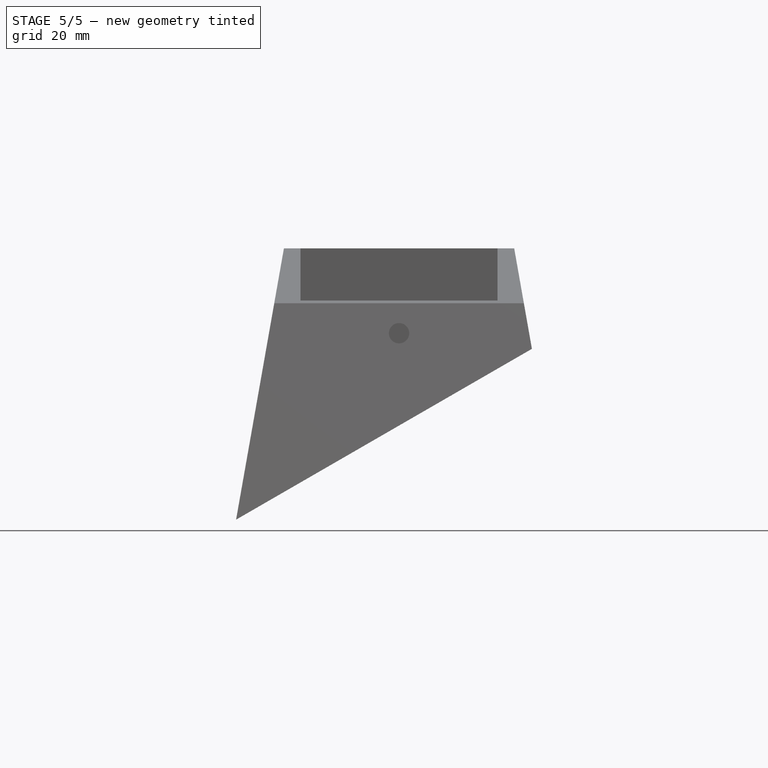
[diagram: stage 5 of 5 — front view after this stage's code; geometry added in this stage tinted green]
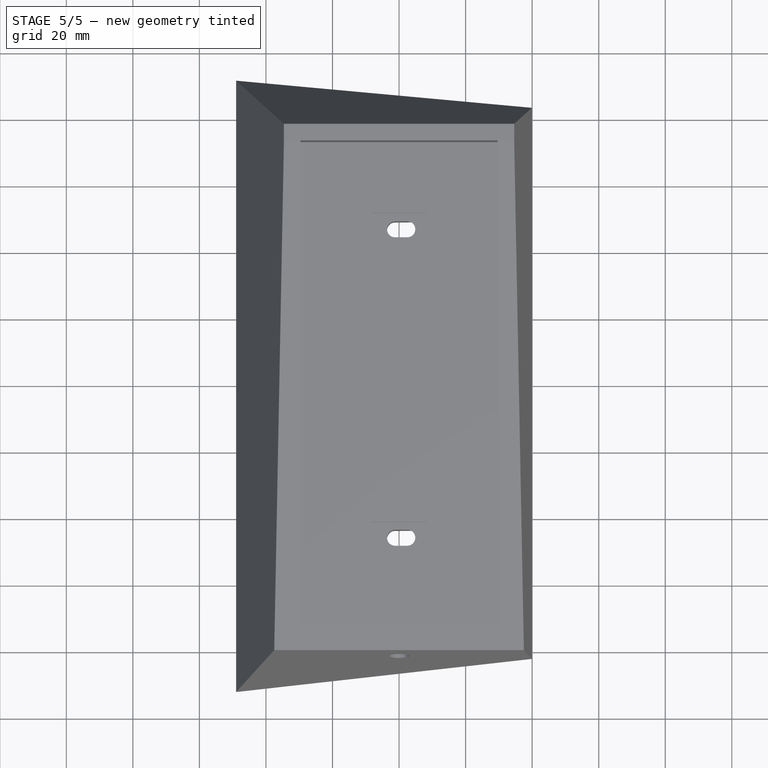
[diagram: stage 5 of 5 — top view after this stage's code; geometry added in this stage tinted green]
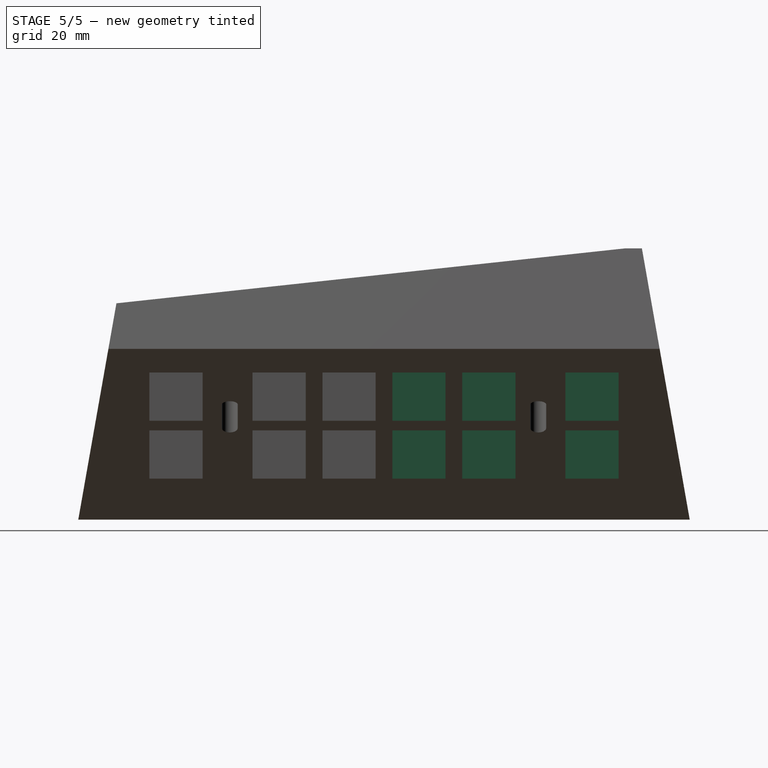
[diagram: stage 5 of 5 — right view after this stage's code; geometry added in this stage tinted green]
FEATURE [Part::Cut] Cut005
  Base = -> Cut004
  Tool = -> Part__Mirroring001
FEATURE [Part::Cut] Cut006
  Base = -> Cut005
  Tool = -> Part__Mirroring002
FEATURE [Part::Cut] Cut007
  Base = -> Cut006
  Tool = -> Extrude007
FEATURE [Part::Cut] Cut008
  Base = -> Cut007
  Tool = -> Extrude008
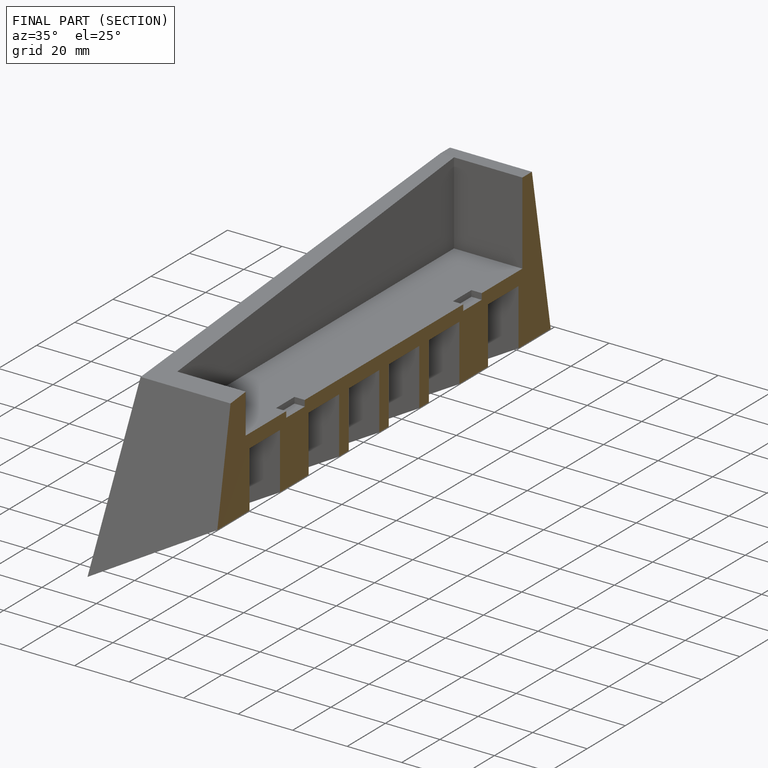
[diagram: finished part — half-section view (interior)]
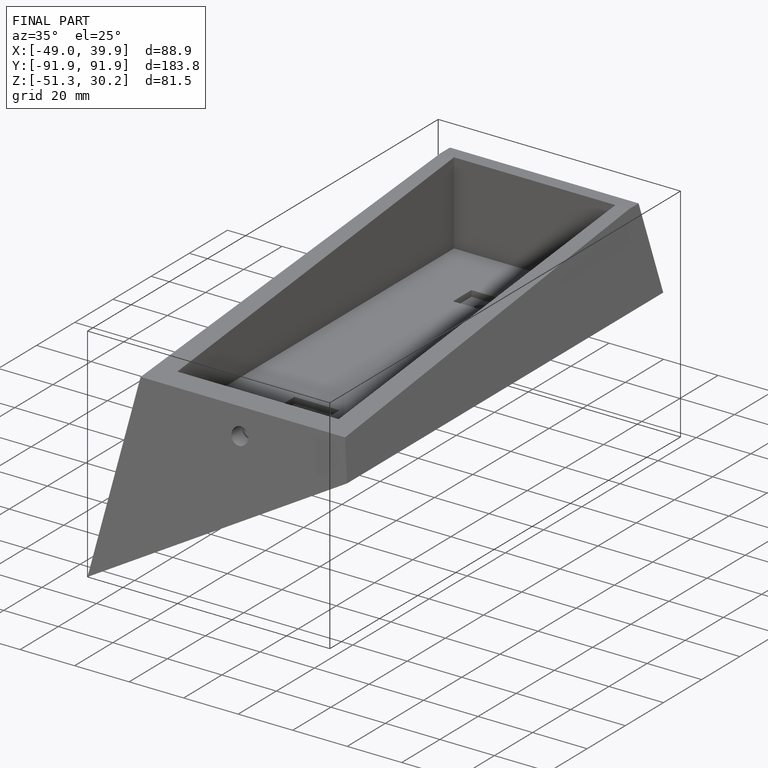
[diagram: finished part — iso view with bounding-box wireframe]
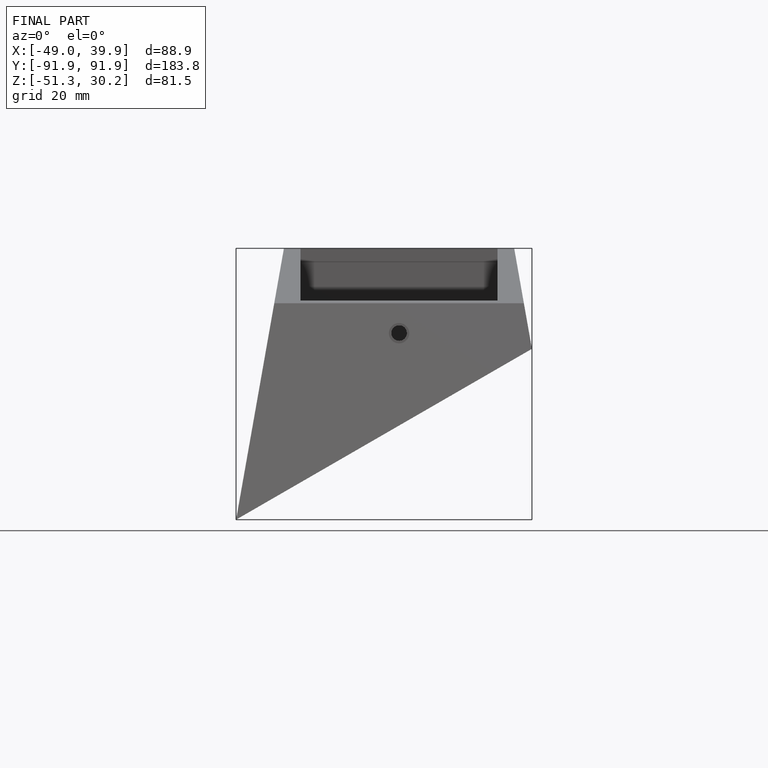
[diagram: finished part — front view with bounding-box wireframe]
